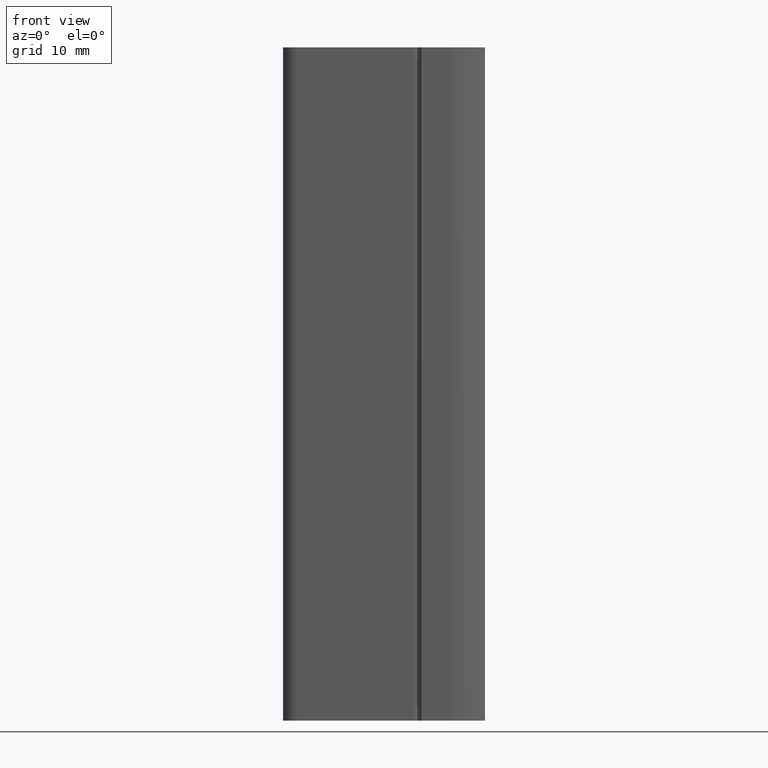
[diagram: clean part render]
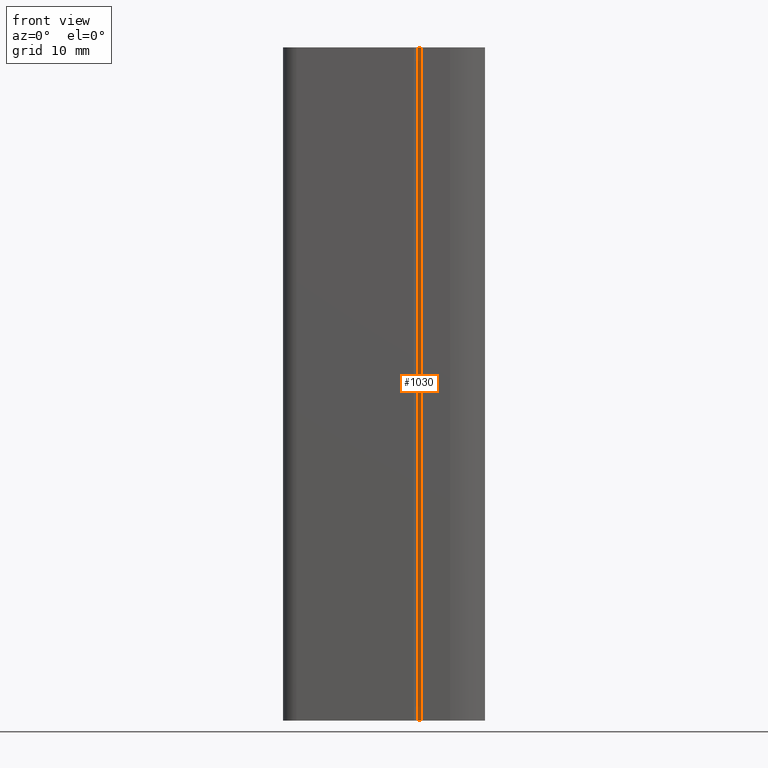
[diagram: same view with one face highlighted and labeled with its STEP entity id]
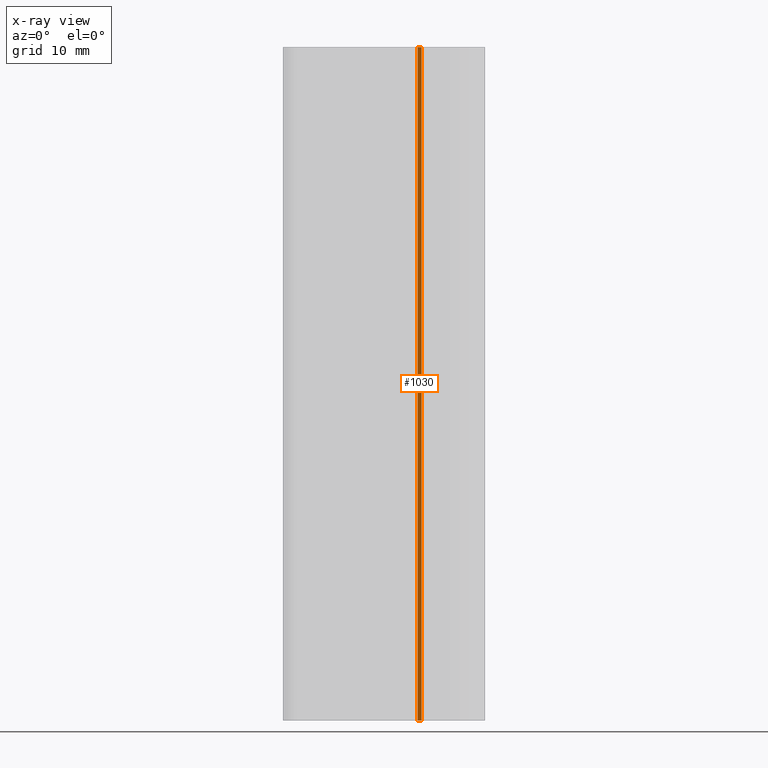
[diagram: x-ray of the same camera — body ghosted, the highlighted face saturated]
A machine part, front view. The second image highlights one B-rep face of the part: STEP entity #1030.
The next image is the same camera in x-ray: the body ghosted, the highlighted face saturated — about 0% of this face is hidden behind the body in this view.
In plain terms, the highlighted planar face has unit normal (-0.7071, -0.7071, 0).
Its self-contained STEP definition (entity closure, byte-faithful):
#974=CARTESIAN_POINT('',(9.282842712449565,0.565685424924595,0.0));
#975=VERTEX_POINT('',#974);
#982=CARTESIAN_POINT('',(9.282842712449565,0.565685424924595,100.0));
#983=VERTEX_POINT('',#982);
#984=CARTESIAN_POINT('',(9.282842712449565,0.565685424924595,0.0));
#985=DIRECTION('',(0.0,0.0,1.0));
#986=VECTOR('',#985,100.0);
#987=LINE('',#984,#986);
#988=EDGE_CURVE('',#975,#983,#987,.T.);
#1000=CARTESIAN_POINT('',(9.282842712449565,0.565685424924595,0.0));
#1001=DIRECTION('',(-0.707106781185766,-0.707106781187329,0.0));
#1002=DIRECTION('',(0.707106781187329,-0.707106781185766,0.0));
#1003=AXIS2_PLACEMENT_3D('',#1000,#1001,#1002);
#1004=PLANE('',#1003);
#1005=CARTESIAN_POINT('',(9.848528137420544,-4.513367E-011,0.0));
#1006=VERTEX_POINT('',#1005);
#1007=CARTESIAN_POINT('',(9.282842712449565,0.565685424924595,0.0));
#1008=DIRECTION('',(0.707106781187329,-0.707106781185766,0.0));
#1009=VECTOR('',#1008,0.800000000029863);
#1010=LINE('',#1007,#1009);
#1011=EDGE_CURVE('',#975,#1006,#1010,.T.);
#1012=ORIENTED_EDGE('',*,*,#1011,.T.);
#1013=CARTESIAN_POINT('',(9.848528137420544,-4.513367E-011,100.0));
#1014=VERTEX_POINT('',#1013);
#1015=CARTESIAN_POINT('',(9.848528137420544,-4.513367E-011,0.0));
#1016=DIRECTION('',(0.0,0.0,1.0));
#1017=VECTOR('',#1016,100.0);
#1018=LINE('',#1015,#1017);
#1019=EDGE_CURVE('',#1006,#1014,#1018,.T.);
#1020=ORIENTED_EDGE('',*,*,#1019,.T.);
#1021=CARTESIAN_POINT('',(9.282842712449565,0.565685424924595,100.0));
#1022=DIRECTION('',(0.707106781187329,-0.707106781185766,0.0));
#1023=VECTOR('',#1022,0.800000000029863);
#1024=LINE('',#1021,#1023);
#1025=EDGE_CURVE('',#983,#1014,#1024,.T.);
#1026=ORIENTED_EDGE('',*,*,#1025,.F.);
#1027=ORIENTED_EDGE('',*,*,#988,.F.);
#1028=EDGE_LOOP('',(#1012,#1020,#1026,#1027));
#1029=FACE_OUTER_BOUND('',#1028,.T.);
#1030=ADVANCED_FACE('',(#1029),#1004,.T.);